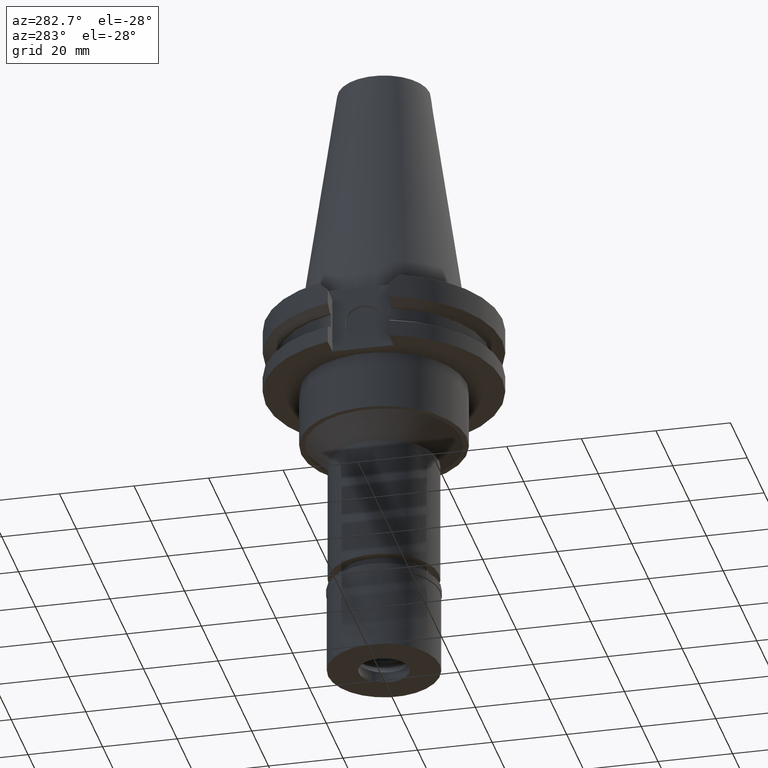
[diagram: clean part render]
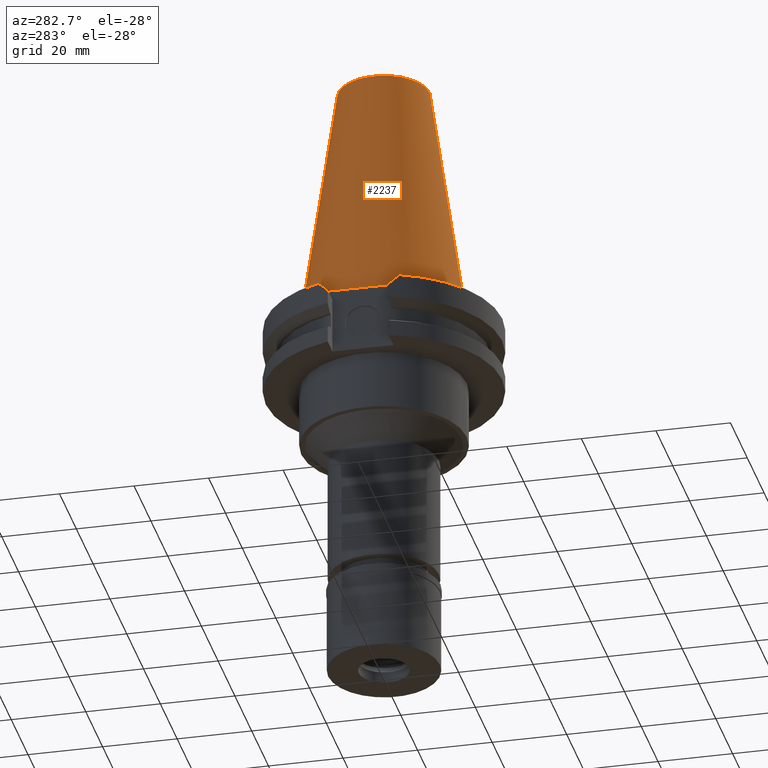
[diagram: same view with one face highlighted and labeled with its STEP entity id]
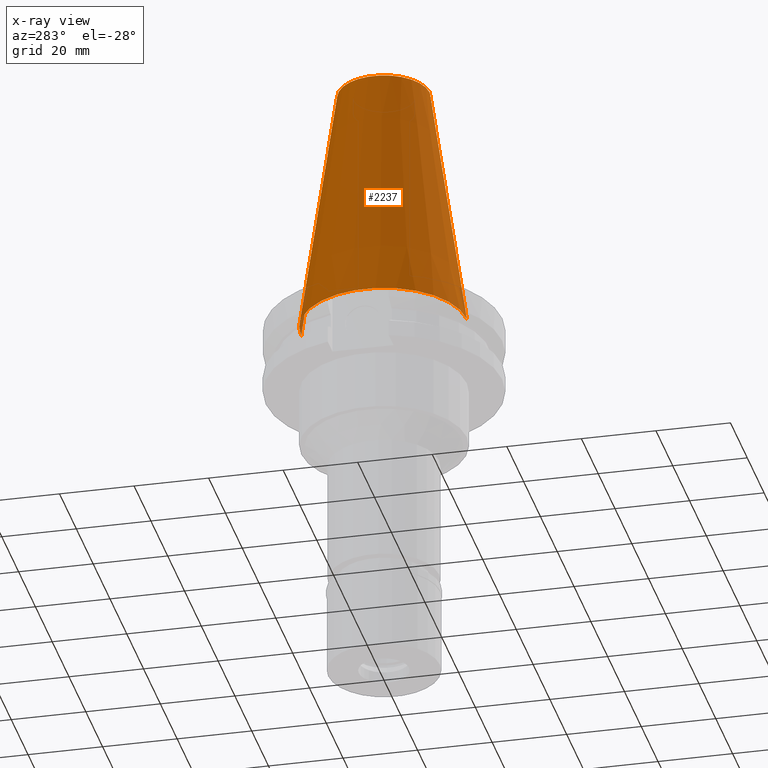
[diagram: x-ray of the same camera — body ghosted, the highlighted face saturated]
A machine part, auxiliary view. The second image highlights one B-rep face of the part: STEP entity #2237.
The next image is the same camera in x-ray: the body ghosted, the highlighted face saturated — about 1% of this face is hidden behind the body in this view.
In plain terms, the highlighted conical surface has half-angle 8.297 deg.
Its self-contained STEP definition (entity closure, byte-faithful):
#59 = EDGE_CURVE ( 'NONE', #982, #280, #1981, .T. ) ;
#99 = EDGE_CURVE ( 'NONE', #219, #919, #2202, .T. ) ;
#219 = VERTEX_POINT ( 'NONE', #2778 ) ;
#280 = VERTEX_POINT ( 'NONE', #3085 ) ;
#476 = CARTESIAN_POINT ( 'NONE',  ( 0.0000000000000000000, 0.0000000000000000000, -2.842170943040000381E-13 ) ) ;
#555 = CONICAL_SURFACE ( 'NONE', #2446, 17.24843444035000317, 0.1448125860318199565 ) ;
#694 = EDGE_CURVE ( 'NONE', #982, #219, #2229, .T. ) ;
#697 = CARTESIAN_POINT ( 'NONE',  ( 0.0000000000000000000, -12.27186888070000137, 68.25000000000000000 ) ) ;
#838 = CARTESIAN_POINT ( 'NONE',  ( 0.0000000000000000000, 0.0000000000000000000, 68.25000000000000000 ) ) ;
#854 = CARTESIAN_POINT ( 'NONE',  ( 0.0000000000000000000, 0.0000000000000000000, 34.12500000000000000 ) ) ;
#919 = VERTEX_POINT ( 'NONE', #2327 ) ;
#982 = VERTEX_POINT ( 'NONE', #1402 ) ;
#1057 = DIRECTION ( 'NONE',  ( 0.0000000000000000000, -1.000000000000000000, 0.0000000000000000000 ) ) ;
#1164 = ORIENTED_EDGE ( 'NONE', *, *, #59, .T. ) ;
#1278 = AXIS2_PLACEMENT_3D ( 'NONE', #476, #2493, #3309 ) ;
#1286 = EDGE_LOOP ( 'NONE', ( #1807, #3267, #1164, #2546 ) ) ;
#1402 = CARTESIAN_POINT ( 'NONE',  ( 0.0000000000000000000, -12.27186888070000137, 68.25000000000000000 ) ) ;
#1727 = DIRECTION ( 'NONE',  ( 0.0000000000000000000, -0.1443069799456937474, -0.9895329683941577192 ) ) ;
#1731 = VECTOR ( 'NONE', #1727, 1000.000000000000114 ) ;
#1807 = ORIENTED_EDGE ( 'NONE', *, *, #99, .F. ) ;
#1828 = AXIS2_PLACEMENT_3D ( 'NONE', #838, #1875, #2895 ) ;
#1841 = CARTESIAN_POINT ( 'NONE',  ( 0.0000000000000000000, 12.27186888070000137, 68.25000000000000000 ) ) ;
#1874 = LINE ( 'NONE', #1841, #2331 ) ;
#1875 = DIRECTION ( 'NONE',  ( 0.0000000000000000000, 0.0000000000000000000, -1.000000000000000000 ) ) ;
#1981 = CIRCLE ( 'NONE', #1828, 12.27186888070000137 ) ;
#2202 = CIRCLE ( 'NONE', #1278, 22.22500000000000142 ) ;
#2229 = LINE ( 'NONE', #697, #1731 ) ;
#2237 = ADVANCED_FACE ( 'NONE', ( #2841 ), #555, .T. ) ;
#2319 = DIRECTION ( 'NONE',  ( 0.0000000000000000000, 0.0000000000000000000, -1.000000000000000000 ) ) ;
#2320 = EDGE_CURVE ( 'NONE', #280, #919, #1874, .T. ) ;
#2327 = CARTESIAN_POINT ( 'NONE',  ( 0.0000000000000000000, 22.22500000000000142, -1.278976924367999843E-13 ) ) ;
#2331 = VECTOR ( 'NONE', #2351, 1000.000000000000114 ) ;
#2351 = DIRECTION ( 'NONE',  ( 0.0000000000000000000, 0.1443069799456937474, -0.9895329683941577192 ) ) ;
#2446 = AXIS2_PLACEMENT_3D ( 'NONE', #854, #2319, #1057 ) ;
#2493 = DIRECTION ( 'NONE',  ( 0.0000000000000000000, 0.0000000000000000000, -1.000000000000000000 ) ) ;
#2546 = ORIENTED_EDGE ( 'NONE', *, *, #2320, .T. ) ;
#2778 = CARTESIAN_POINT ( 'NONE',  ( 0.0000000000000000000, -22.22500000000000142, -1.278976924367999843E-13 ) ) ;
#2841 = FACE_OUTER_BOUND ( 'NONE', #1286, .T. ) ;
#2895 = DIRECTION ( 'NONE',  ( 0.0000000000000000000, -1.000000000000000000, 0.0000000000000000000 ) ) ;
#3085 = CARTESIAN_POINT ( 'NONE',  ( 0.0000000000000000000, 12.27186888070000137, 68.25000000000000000 ) ) ;
#3267 = ORIENTED_EDGE ( 'NONE', *, *, #694, .F. ) ;
#3309 = DIRECTION ( 'NONE',  ( 0.0000000000000000000, -1.000000000000000000, 0.0000000000000000000 ) ) ;